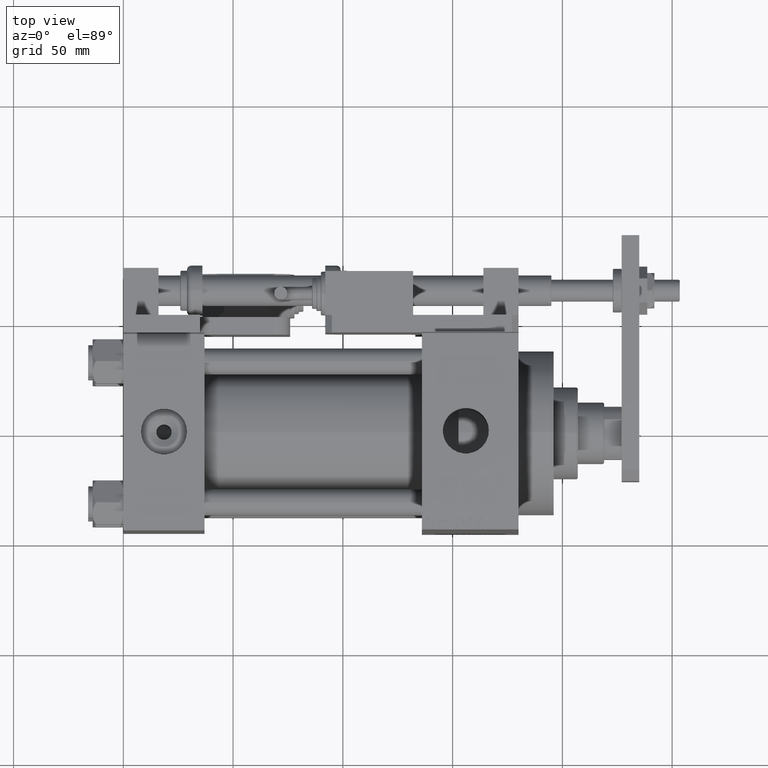
[diagram: clean part render]
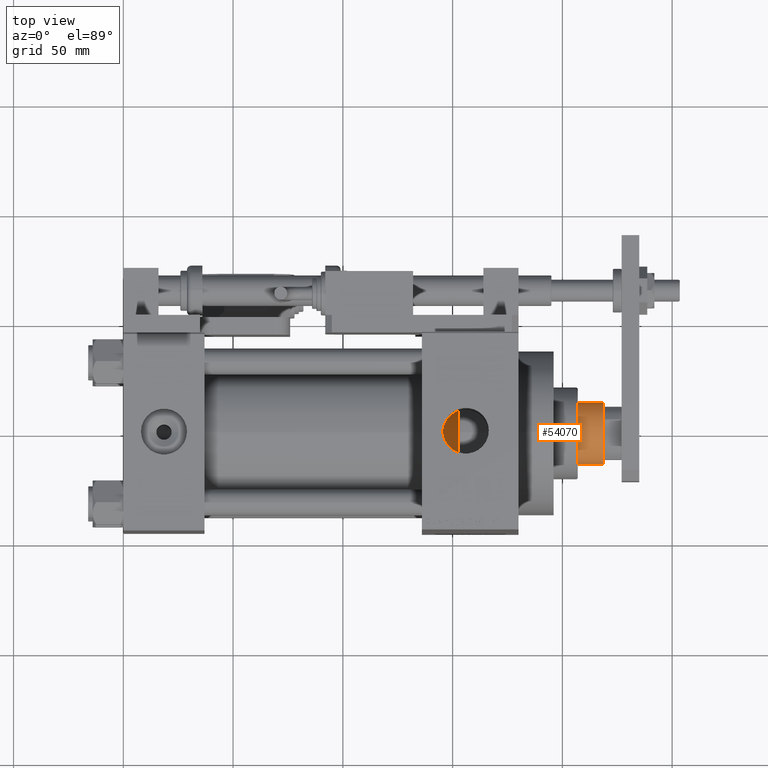
[diagram: same view with one face highlighted and labeled with its STEP entity id]
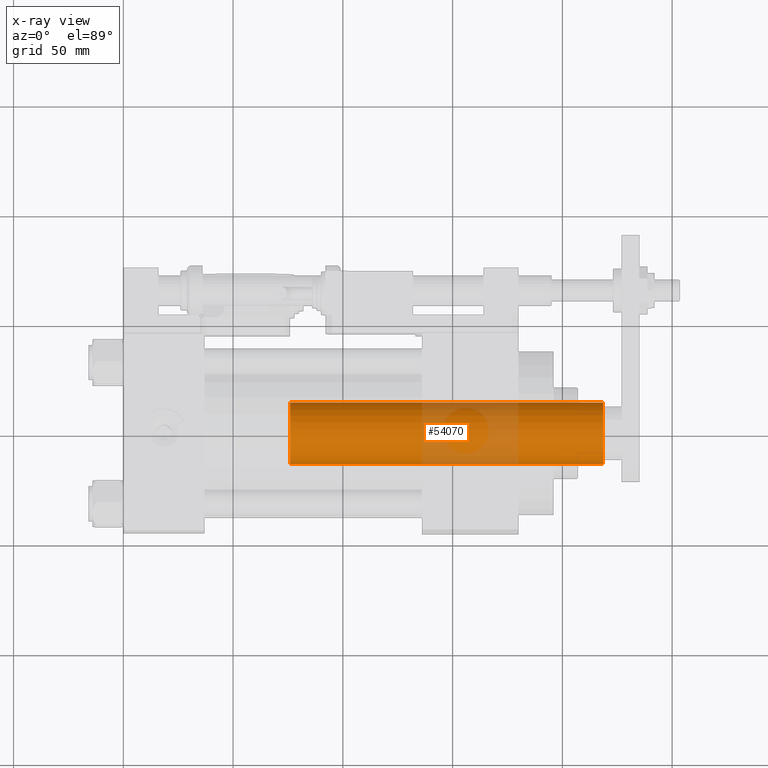
[diagram: x-ray of the same camera — body ghosted, the highlighted face saturated]
A machine part, top view. The second image highlights one B-rep face of the part: STEP entity #54070.
The next image is the same camera in x-ray: the body ghosted, the highlighted face saturated — about 22% of this face is hidden behind the body in this view.
In plain terms, the highlighted cylindrical surface (edge-blend (fillet) strip) has radius 14 mm, axis along (-1, 0, 0).
Its self-contained STEP definition (entity closure, byte-faithful):
#894 = VERTEX_POINT ( 'NONE', #11695 ) ;
#1327 = DIRECTION ( 'NONE',  ( -0.000000000000000000, -0.000000000000000000, -1.000000000000000000 ) ) ;
#3466 = ORIENTED_EDGE ( 'NONE', *, *, #51327, .F. ) ;
#3911 = AXIS2_PLACEMENT_3D ( 'NONE', #4944, #1327, #34701 ) ;
#4568 = EDGE_CURVE ( 'NONE', #894, #21673, #13718, .T. ) ;
#4944 = CARTESIAN_POINT ( 'NONE',  ( 0.000000000000000000, 0.000000000000000000, 182.0000000000000000 ) ) ;
#5481 = FACE_OUTER_BOUND ( 'NONE', #12260, .T. ) ;
#9075 = DIRECTION ( 'NONE',  ( 1.000000000000000000, 0.000000000000000000, 0.000000000000000000 ) ) ;
#9323 = LINE ( 'NONE', #51871, #41026 ) ;
#9632 = ORIENTED_EDGE ( 'NONE', *, *, #46529, .T. ) ;
#11695 = CARTESIAN_POINT ( 'NONE',  ( 14.00000000000000000, 1.714505518806294638E-15, 181.5000000000000284 ) ) ;
#12260 = EDGE_LOOP ( 'NONE', ( #3466, #29831, #9632, #49057 ) ) ;
#13531 = CARTESIAN_POINT ( 'NONE',  ( 0.000000000000000000, 0.000000000000000000, 39.00000000000000000 ) ) ;
#13718 = CIRCLE ( 'NONE', #21741, 14.00000000000000000 ) ;
#14092 = LINE ( 'NONE', #47750, #38588 ) ;
#14637 = DIRECTION ( 'NONE',  ( -0.000000000000000000, -0.000000000000000000, -1.000000000000000000 ) ) ;
#14946 = DIRECTION ( 'NONE',  ( 1.000000000000000000, 0.000000000000000000, 0.000000000000000000 ) ) ;
#15310 = AXIS2_PLACEMENT_3D ( 'NONE', #13531, #47997, #9075 ) ;
#20079 = CARTESIAN_POINT ( 'NONE',  ( -14.00000000000000000, 0.000000000000000000, 181.5000000000000284 ) ) ;
#21673 = VERTEX_POINT ( 'NONE', #20079 ) ;
#21741 = AXIS2_PLACEMENT_3D ( 'NONE', #53045, #23284, #14946 ) ;
#22177 = VERTEX_POINT ( 'NONE', #22680 ) ;
#22465 = CYLINDRICAL_SURFACE ( 'NONE', #3911, 14.00000000000000000 ) ;
#22680 = CARTESIAN_POINT ( 'NONE',  ( -14.00000000000000000, 0.000000000000000000, 39.00000000000000000 ) ) ;
#23284 = DIRECTION ( 'NONE',  ( 0.000000000000000000, 0.000000000000000000, -1.000000000000000000 ) ) ;
#29637 = DIRECTION ( 'NONE',  ( -0.000000000000000000, -0.000000000000000000, -1.000000000000000000 ) ) ;
#29831 = ORIENTED_EDGE ( 'NONE', *, *, #4568, .T. ) ;
#34316 = EDGE_CURVE ( 'NONE', #22177, #43919, #53492, .T. ) ;
#34701 = DIRECTION ( 'NONE',  ( -1.000000000000000000, 0.000000000000000000, 0.000000000000000000 ) ) ;
#38588 = VECTOR ( 'NONE', #14637, 1000.000000000000000 ) ;
#39471 = CARTESIAN_POINT ( 'NONE',  ( 14.00000000000000000, 1.714505518806294638E-15, 39.00000000000000000 ) ) ;
#41026 = VECTOR ( 'NONE', #29637, 1000.000000000000000 ) ;
#43919 = VERTEX_POINT ( 'NONE', #39471 ) ;
#46529 = EDGE_CURVE ( 'NONE', #21673, #22177, #9323, .T. ) ;
#47750 = CARTESIAN_POINT ( 'NONE',  ( 14.00000000000000000, 1.714505518806294638E-15, 182.0000000000000000 ) ) ;
#47997 = DIRECTION ( 'NONE',  ( 0.000000000000000000, 0.000000000000000000, 1.000000000000000000 ) ) ;
#49057 = ORIENTED_EDGE ( 'NONE', *, *, #34316, .T. ) ;
#51327 = EDGE_CURVE ( 'NONE', #894, #43919, #14092, .T. ) ;
#51871 = CARTESIAN_POINT ( 'NONE',  ( -14.00000000000000000, 0.000000000000000000, 182.0000000000000000 ) ) ;
#53045 = CARTESIAN_POINT ( 'NONE',  ( 0.000000000000000000, 0.000000000000000000, 181.5000000000000284 ) ) ;
#53492 = CIRCLE ( 'NONE', #15310, 14.00000000000000000 ) ;
#54070 = ADVANCED_FACE ( 'NONE', ( #5481 ), #22465, .T. ) ;